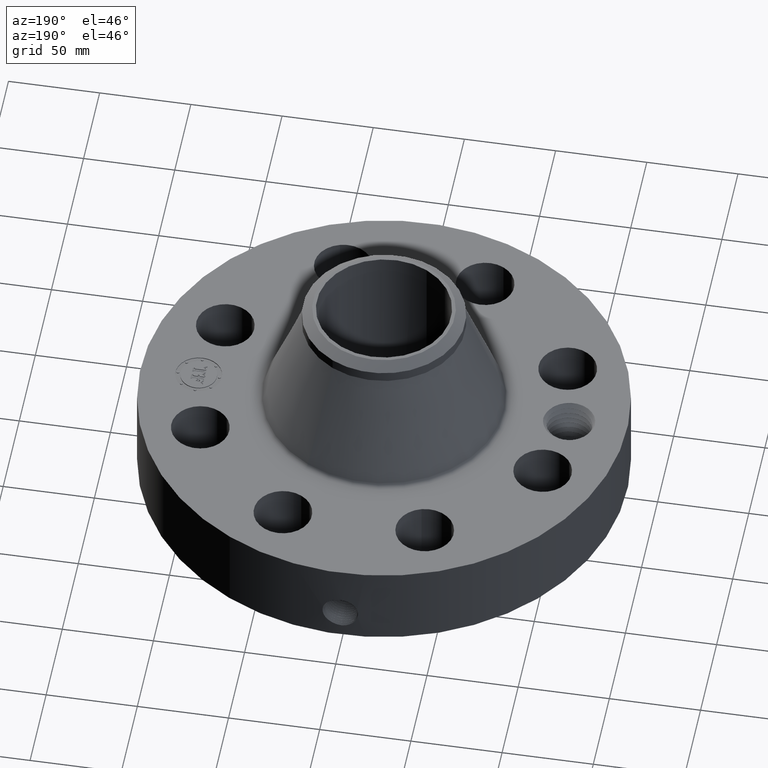
[diagram: clean part render]
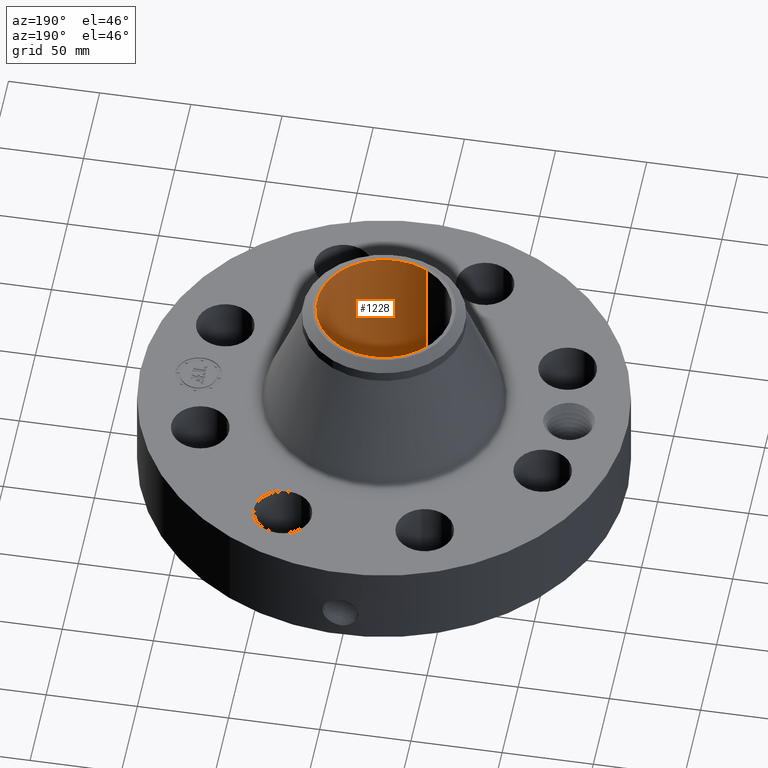
[diagram: same view with one face highlighted and labeled with its STEP entity id]
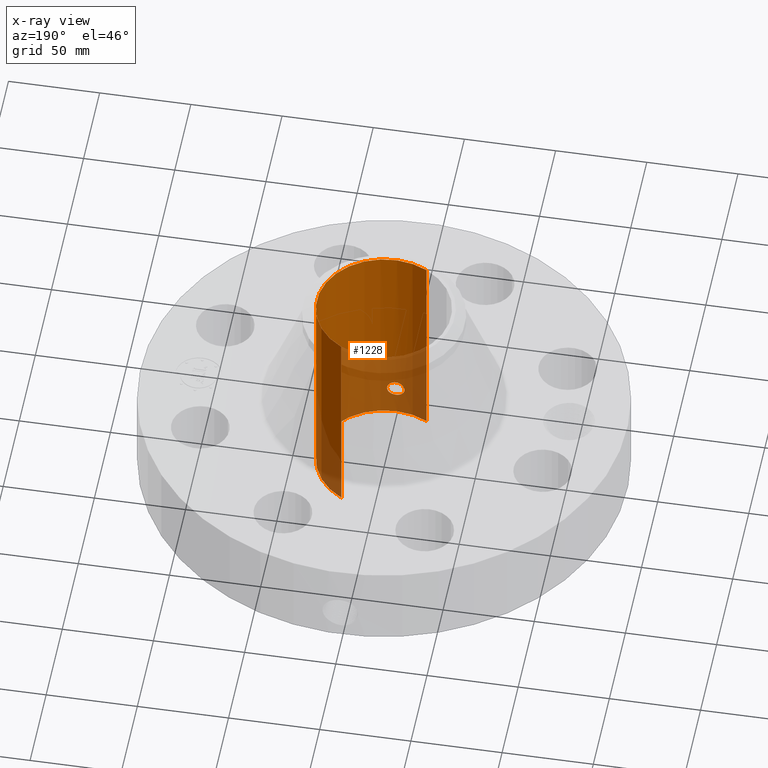
[diagram: x-ray of the same camera — body ghosted, the highlighted face saturated]
A machine part, auxiliary view. The second image highlights one B-rep face of the part: STEP entity #1228.
The next image is the same camera in x-ray: the body ghosted, the highlighted face saturated — about 35% of this face is hidden behind the body in this view.
In plain terms, the highlighted cylindrical surface (partial cylindrical patch) has radius 36.83 mm, axis along (0, 0, -1).
Its self-contained STEP definition (entity closure, byte-faithful):
#249=AXIS2_PLACEMENT_3D('Circle Axis2P3D',#247,#248,$) ;
#1159=AXIS2_PLACEMENT_3D('Cylinder Axis2P3D',#1156,#1157,#1158) ;
#1163=AXIS2_PLACEMENT_3D('Circle Axis2P3D',#1161,#1162,$) ;
#247=CARTESIAN_POINT('Axis2P3D Location',(0.,0.,0.250000000001)) ;
#251=CARTESIAN_POINT('Vertex',(0.695167030979,1.27249471475,0.250000000001)) ;
#253=CARTESIAN_POINT('Vertex',(-0.695167030979,-1.27249471475,0.250000000001)) ;
#1156=CARTESIAN_POINT('Axis2P3D Location',(0.,0.,2.56000000001)) ;
#1161=CARTESIAN_POINT('Axis2P3D Location',(0.,0.,4.87000000002)) ;
#1165=CARTESIAN_POINT('Vertex',(0.695167030979,1.27249471475,4.87000000002)) ;
#1167=CARTESIAN_POINT('Vertex',(-0.695167030979,-1.27249471475,4.87000000002)) ;
#1170=CARTESIAN_POINT('Line Origine',(0.695167030979,1.27249471475,2.56000000001)) ;
#1175=CARTESIAN_POINT('Line Origine',(-0.695167030979,-1.27249471475,2.56000000001)) ;
#1187=CARTESIAN_POINT('Control Point',(0.164546730355,-1.44063332377,0.850107711515)) ;
#1188=CARTESIAN_POINT('Control Point',(0.15373107092,-1.44186867031,0.830309779716)) ;
#1189=CARTESIAN_POINT('Control Point',(0.139944075111,-1.4433405746,0.812149885822)) ;
#1190=CARTESIAN_POINT('Control Point',(0.123510243043,-1.44489924446,0.796210668082)) ;
#1191=CARTESIAN_POINT('Control Point',(0.07714576675,-1.44849158589,0.763196869127)) ;
#1192=CARTESIAN_POINT('Control Point',(0.0211416426447,-1.45046278414,0.749002255781)) ;
#1193=CARTESIAN_POINT('Control Point',(-0.013887754064,-1.45055904578,0.748336325563)) ;
#1194=CARTESIAN_POINT('Control Point',(-0.0704180054587,-1.4488559579,0.760406332184)) ;
#1195=CARTESIAN_POINT('Control Point',(-0.118016251891,-1.44536877231,0.791663409426)) ;
#1196=CARTESIAN_POINT('Control Point',(-0.135050957035,-1.44381724598,0.806987403616)) ;
#1197=CARTESIAN_POINT('Control Point',(-0.174424603892,-1.439735322,0.855004056748)) ;
#1198=CARTESIAN_POINT('Control Point',(-0.192227243467,-1.43719597583,0.915976423203)) ;
#1199=CARTESIAN_POINT('Control Point',(-0.192994709922,-1.43707883877,0.956812274136)) ;
#1200=CARTESIAN_POINT('Control Point',(-0.183180576887,-1.43850499696,0.995783261207)) ;
#1201=CARTESIAN_POINT('Control Point',(-0.164546730355,-1.44063332377,1.02989228849)) ;
#1202=CARTESIAN_POINT('Vertex',(0.164546730355,-1.44063332377,0.850107711515)) ;
#1204=CARTESIAN_POINT('Vertex',(-0.164546730355,-1.44063332377,1.02989228849)) ;
#1208=CARTESIAN_POINT('Control Point',(-0.164546730355,-1.44063332377,1.02989228849)) ;
#1209=CARTESIAN_POINT('Control Point',(-0.153731070917,-1.44186867031,1.0496902203)) ;
#1210=CARTESIAN_POINT('Control Point',(-0.139944075105,-1.4433405746,1.06785011419)) ;
#1211=CARTESIAN_POINT('Control Point',(-0.123510243051,-1.44489924446,1.08378933192)) ;
#1212=CARTESIAN_POINT('Control Point',(-0.077145766755,-1.44849158589,1.11680313088)) ;
#1213=CARTESIAN_POINT('Control Point',(-0.0211416426456,-1.45046278414,1.13099774423)) ;
#1214=CARTESIAN_POINT('Control Point',(0.0138877540639,-1.45055904578,1.13166367444)) ;
#1215=CARTESIAN_POINT('Control Point',(0.0704180054572,-1.4488559579,1.11959366782)) ;
#1216=CARTESIAN_POINT('Control Point',(0.118016251888,-1.44536877231,1.08833659058)) ;
#1217=CARTESIAN_POINT('Control Point',(0.135050957037,-1.44381724598,1.07301259639)) ;
#1218=CARTESIAN_POINT('Control Point',(0.174424603891,-1.439735322,1.02499594326)) ;
#1219=CARTESIAN_POINT('Control Point',(0.192227243466,-1.43719597583,0.964023576808)) ;
#1220=CARTESIAN_POINT('Control Point',(0.192994709922,-1.43707883877,0.923187725868)) ;
#1221=CARTESIAN_POINT('Control Point',(0.183180576886,-1.43850499696,0.884216738799)) ;
#1222=CARTESIAN_POINT('Control Point',(0.164546730355,-1.44063332377,0.850107711515)) ;
#248=DIRECTION('Axis2P3D Direction',(0.,0.,-0.0393700787402)) ;
#1157=DIRECTION('Axis2P3D Direction',(0.,0.,-0.0393700787402)) ;
#1158=DIRECTION('Axis2P3D XDirection',(-0.0188750212049,-0.0345504945626,0.)) ;
#1162=DIRECTION('Axis2P3D Direction',(0.,0.,-0.0393700787402)) ;
#1171=DIRECTION('Vector Direction',(0.,0.,-0.0393700787402)) ;
#1176=DIRECTION('Vector Direction',(0.,0.,-0.0393700787402)) ;
#1172=VECTOR('Line Direction',#1171,0.0393700787402) ;
#1177=VECTOR('Line Direction',#1176,0.0393700787402) ;
#1181=ORIENTED_EDGE('',*,*,#1169,.F.) ;
#1182=ORIENTED_EDGE('',*,*,#1174,.T.) ;
#1183=ORIENTED_EDGE('',*,*,#255,.T.) ;
#1184=ORIENTED_EDGE('',*,*,#1179,.F.) ;
#1225=ORIENTED_EDGE('',*,*,#1206,.F.) ;
#1226=ORIENTED_EDGE('',*,*,#1223,.F.) ;
#1227=FACE_BOUND('',#1224,.T.) ;
#1228=ADVANCED_FACE('PartBody',(#1185,#1227),#1160,.F.) ;
#1186=B_SPLINE_CURVE_WITH_KNOTS('',5,(#1187,#1188,#1189,#1190,#1191,#1192,#1193,#1194,#1195,#1196,#1197,#1198,#1199,#1200,#1201),.UNSPECIFIED.,.F.,.U.,(6,3,3,3,6),(0.,4.0578941491,10.1286634843,14.1897420018,21.1809178306),.UNSPECIFIED.) ;
#1207=B_SPLINE_CURVE_WITH_KNOTS('',5,(#1208,#1209,#1210,#1211,#1212,#1213,#1214,#1215,#1216,#1217,#1218,#1219,#1220,#1221,#1222),.UNSPECIFIED.,.F.,.U.,(6,3,3,3,6),(0.,4.05789414994,10.1286634851,14.1897420024,21.1809178309),.UNSPECIFIED.) ;
#250=CIRCLE('generated circle',#249,1.45000000001) ;
#1164=CIRCLE('generated circle',#1163,1.45000000001) ;
#1160=CYLINDRICAL_SURFACE('generated cylinder',#1159,1.45000000001) ;
#255=EDGE_CURVE('',#252,#254,#250,.T.) ;
#1169=EDGE_CURVE('',#1166,#1168,#1164,.T.) ;
#1174=EDGE_CURVE('',#1166,#252,#1173,.T.) ;
#1179=EDGE_CURVE('',#1168,#254,#1178,.T.) ;
#1206=EDGE_CURVE('',#1203,#1205,#1186,.T.) ;
#1223=EDGE_CURVE('',#1205,#1203,#1207,.T.) ;
#1180=EDGE_LOOP('',(#1181,#1182,#1183,#1184)) ;
#1224=EDGE_LOOP('',(#1225,#1226)) ;
#1185=FACE_OUTER_BOUND('',#1180,.T.) ;
#1173=LINE('Line',#1170,#1172) ;
#1178=LINE('Line',#1175,#1177) ;
#252=VERTEX_POINT('',#251) ;
#254=VERTEX_POINT('',#253) ;
#1166=VERTEX_POINT('',#1165) ;
#1168=VERTEX_POINT('',#1167) ;
#1203=VERTEX_POINT('',#1202) ;
#1205=VERTEX_POINT('',#1204) ;